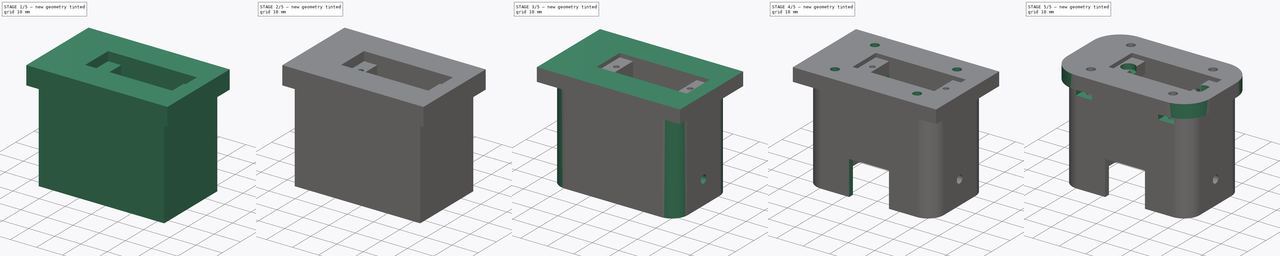
[diagram: build sequence overview — one tinted view per stage of 5, left to right]
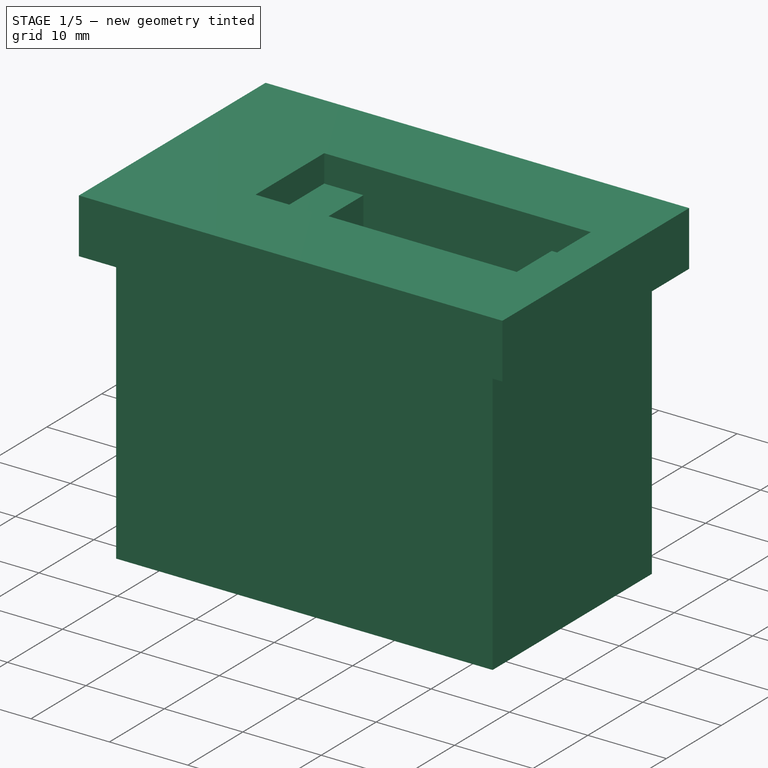
[diagram: stage 1 of 5 — iso view after this stage's code; geometry added in this stage tinted green]
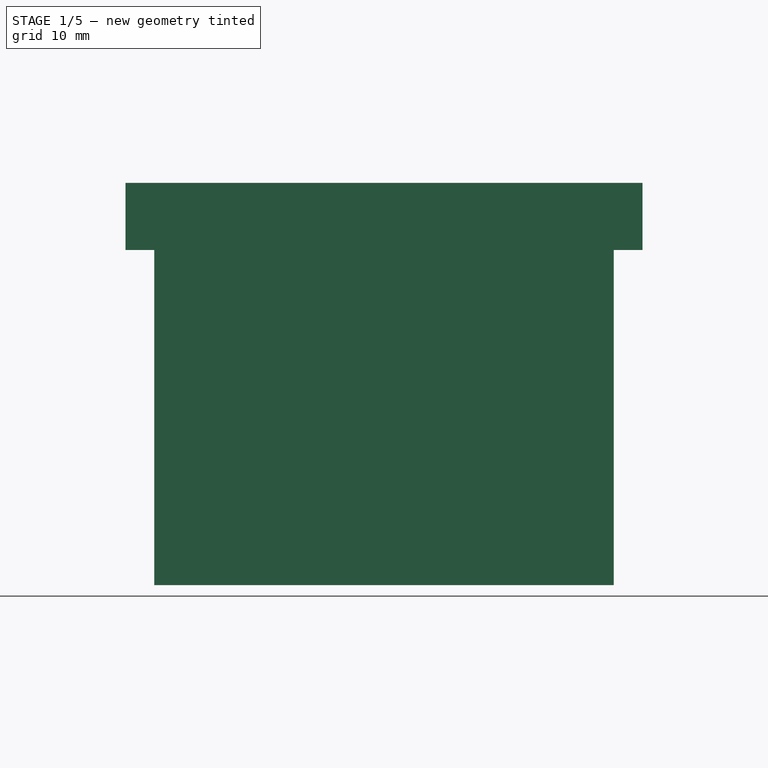
[diagram: stage 1 of 5 — front view after this stage's code; geometry added in this stage tinted green]
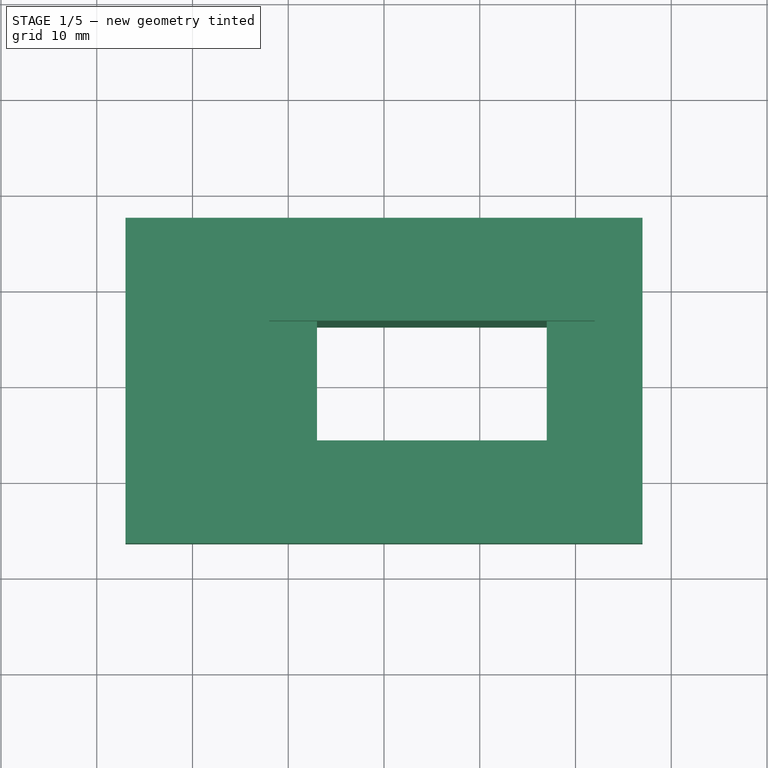
[diagram: stage 1 of 5 — top view after this stage's code; geometry added in this stage tinted green]
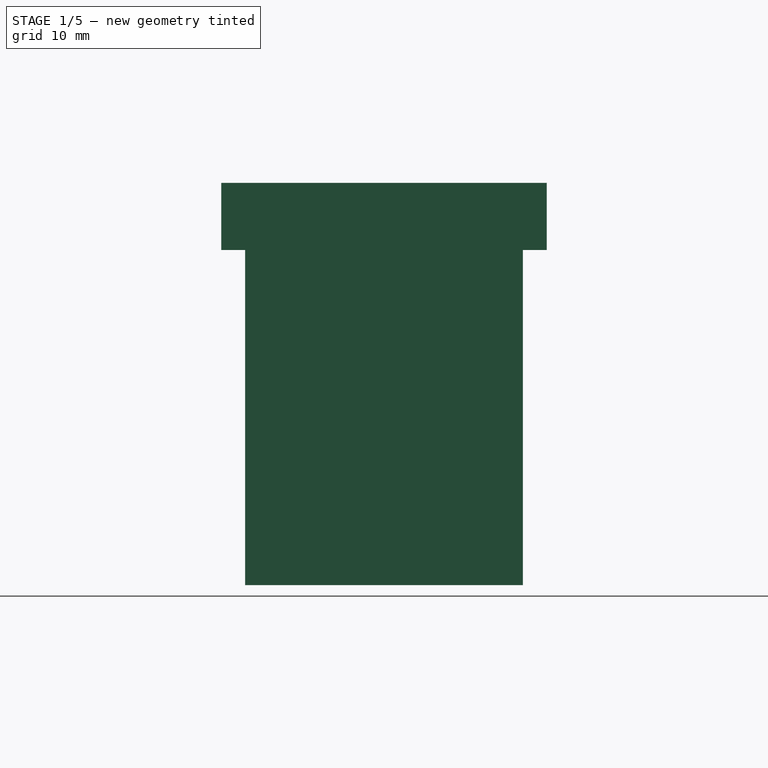
[diagram: stage 1 of 5 — right view after this stage's code; geometry added in this stage tinted green]
FCSTD DOCUMENT  (FreeCAD 0.21R33668 +26 (Git))
Label: Gripper_3_1
License: All rights reserved
LicenseURL: https://en.wikipedia.org/wiki/All_rights_reserved
objects: Sketcher::SketchObject×13, PartDesign::Pocket×11, PartDesign::Pad×2, PartDesign::Fillet×2, PartDesign::Body×1
note: 44 computed .brp shape members not serialized (recipe doc carries the construction recipe); baked Part::Feature solids carry a one-line shape summary decoded from their .brp

FEATURE [Sketcher::SketchObject] Sketch
  FullyConstrained = true
  MapMode = 5
  Support = -> [XY_Plane]
  sketch-geometry (9):
    g0: LineSegment StartX=-27 StartY=-17 StartZ=0 EndX=-27 EndY=17 EndZ=0
    g1: LineSegment StartX=-27 StartY=17 StartZ=0 EndX=27 EndY=17 EndZ=0
    g2: LineSegment StartX=27 StartY=17 StartZ=0 EndX=27 EndY=-17 EndZ=0
    g3: LineSegment StartX=27 StartY=-17 StartZ=0 EndX=-27 EndY=-17 EndZ=0
    g4: GeomPoint X=0 Y=0 Z=0
    g5: LineSegment StartX=-7 StartY=6.25 StartZ=0 EndX=17 EndY=6.25 EndZ=0
    g6: LineSegment StartX=17 StartY=6.25 StartZ=0 EndX=17 EndY=-6.25 EndZ=0
    g7: LineSegment StartX=17 StartY=-6.25 StartZ=0 EndX=-7 EndY=-6.25 EndZ=0
    g8: LineSegment StartX=-7 StartY=-6.25 StartZ=0 EndX=-7 EndY=6.25 EndZ=0
  constraints (24):
    c: Coincident(g0,g1)
    c: Coincident(g1,g2)
    c: Coincident(g2,g3)
    c: Coincident(g3,g0)
    c: Horizontal(g1)
    c: Horizontal(g3)
    c: Vertical(g0)
    c: Vertical(g2)
    c: Symmetric(g1,g0,g4)
    c: Coincident(g4,g-1)
    c: DistanceX(g1,g1) = 54
    c: DistanceY(g2,g2) = 34
    c: Coincident(g5,g6)
    c: Coincident(g6,g7)
    c: Coincident(g7,g8)
    c: Coincident(g8,g5)
    c: Horizontal(g5)
    c: Horizontal(g7)
    c: Vertical(g6)
    c: Vertical(g8)
    c: DistanceY(g8,g8) = 12.5
    c: DistanceX(g5,g5) = 24
    c: DistanceX(g0,g5) = 20
    c: DistanceY(g2,g6) = 10.75
FEATURE [PartDesign::Pad] Pad
  Direction = (0,0,1)
  Length = 7
  Length2 = 10
  Profile = -> Sketch
  ReferenceAxis = -> Sketch [N_Axis]
  Type = 0
FEATURE [Sketcher::SketchObject] Sketch001
  ExternalGeometry = -> [Pad]
  FullyConstrained = true
  MapMode = 5
  Placement = pos=(0,0,7) rot=(0,0,1;0rad)
  Support = -> [Pad]
  sketch-geometry (8):
    g0: LineSegment StartX=-7 StartY=6.25 StartZ=0 EndX=-12 EndY=6.25 EndZ=0
    g1: LineSegment StartX=-12 StartY=6.25 StartZ=0 EndX=-12 EndY=-6.25 EndZ=0
    g2: LineSegment StartX=-12 StartY=-6.25 StartZ=0 EndX=-7 EndY=-6.25 EndZ=0
    g3: LineSegment StartX=-7 StartY=-6.25 StartZ=0 EndX=-7 EndY=6.25 EndZ=0
    g4: LineSegment StartX=17 StartY=6.25 StartZ=0 EndX=22 EndY=6.25 EndZ=0
    g5: LineSegment StartX=22 StartY=6.25 StartZ=0 EndX=22 EndY=-6.25 EndZ=0
    g6: LineSegment StartX=22 StartY=-6.25 StartZ=0 EndX=17 EndY=-6.25 EndZ=0
    g7: LineSegment StartX=17 StartY=-6.25 StartZ=0 EndX=17 EndY=6.25 EndZ=0
  constraints (22):
    c: Coincident(g0,g1)
    c: Coincident(g1,g2)
    c: Coincident(g2,g3)
    c: Coincident(g3,g0)
    c: Horizontal(g0)
    c: Horizontal(g2)
    c: Vertical(g1)
    c: Vertical(g3)
    c: Coincident(g0,g-4)
    c: Coincident(g4,g5)
    c: Coincident(g5,g6)
    c: Coincident(g6,g7)
    c: Coincident(g7,g4)
    c: Horizontal(g4)
    c: Horizontal(g6)
    c: Vertical(g5)
    c: Vertical(g7)
    c: Coincident(g4,g-3)
    c: DistanceX(g4,g4) = 5
    c: DistanceX(g0,g0) = 5
    c: Horizontal(g1,g6)
    c: Horizontal(g5,g-3)
FEATURE [PartDesign::Pocket] Pocket
  BaseFeature = -> Pad
  Direction = (0,0,-1)
  Length = 3.5
  Length2 = 5
  Profile = -> Sketch001
  ReferenceAxis = -> Sketch001 [N_Axis]
  Type = 0
FEATURE [Sketcher::SketchObject] Sketch002
  ExternalGeometry = -> [Pocket]
  FullyConstrained = true
  MapMode = 5
  Placement = pos=(0,0,0) rot=(1,0,0;3.14159rad)
  Support = -> [Pocket]
  sketch-geometry (8):
    g0: LineSegment StartX=-24 StartY=14.5 StartZ=0 EndX=24 EndY=14.5 EndZ=0
    g1: LineSegment StartX=24 StartY=14.5 StartZ=0 EndX=24 EndY=-14.5 EndZ=0
    g2: LineSegment StartX=24 StartY=-14.5 StartZ=0 EndX=-24 EndY=-14.5 EndZ=0
    g3: LineSegment StartX=-24 StartY=-14.5 StartZ=0 EndX=-24 EndY=14.5 EndZ=0
    g4: LineSegment StartX=-7 StartY=6.25 StartZ=0 EndX=17 EndY=6.25 EndZ=0
    g5: LineSegment StartX=17 StartY=6.25 StartZ=0 EndX=17 EndY=-6.25 EndZ=0
    g6: LineSegment StartX=17 StartY=-6.25 StartZ=0 EndX=-7 EndY=-6.25 EndZ=0
    g7: LineSegment StartX=-7 StartY=-6.25 StartZ=0 EndX=-7 EndY=6.25 EndZ=0
  constraints (22):
    c: Coincident(g0,g1)
    c: Coincident(g1,g2)
    c: Coincident(g2,g3)
    c: Coincident(g3,g0)
    c: Horizontal(g0)
    c: Horizontal(g2)
    c: Vertical(g1)
    c: Vertical(g3)
    c: DistanceX(g0,g0) = 48
    c: DistanceY(g3,g3) = 29
    c: DistanceX(g-3,g0) = 3
    c: DistanceY(g0,g-3) = 2.5
    c: Coincident(g4,g5)
    c: Coincident(g5,g6)
    c: Coincident(g6,g7)
    c: Coincident(g7,g4)
    c: Horizontal(g4)
    c: Horizontal(g6)
    c: Vertical(g5)
    c: Vertical(g7)
    c: Coincident(g4,g-5)
    c: Coincident(g5,g-6)
FEATURE [PartDesign::Pad] Pad001
  BaseFeature = -> Pocket
  Direction = (0,0,-1)
  Length = 35
  Length2 = 10
  Profile = -> Sketch002
  ReferenceAxis = -> Sketch002 [N_Axis]
  Type = 0
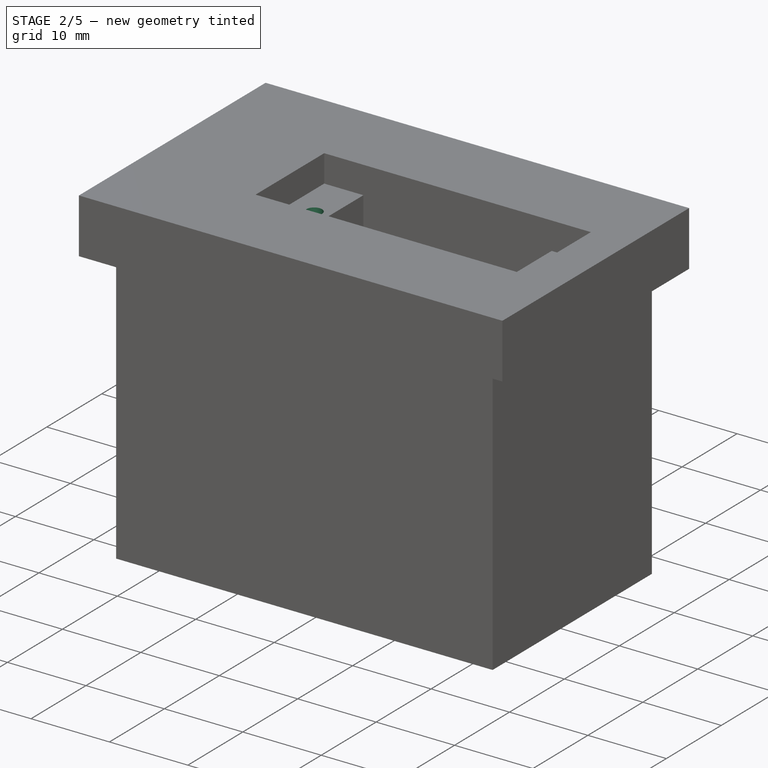
[diagram: stage 2 of 5 — iso view after this stage's code; geometry added in this stage tinted green]
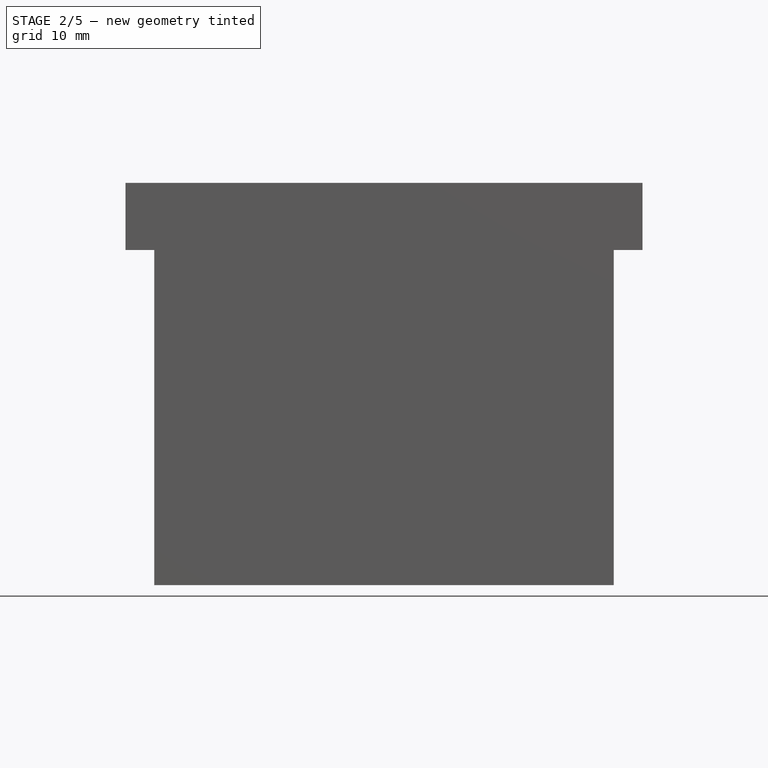
[diagram: stage 2 of 5 — front view after this stage's code; geometry added in this stage tinted green]
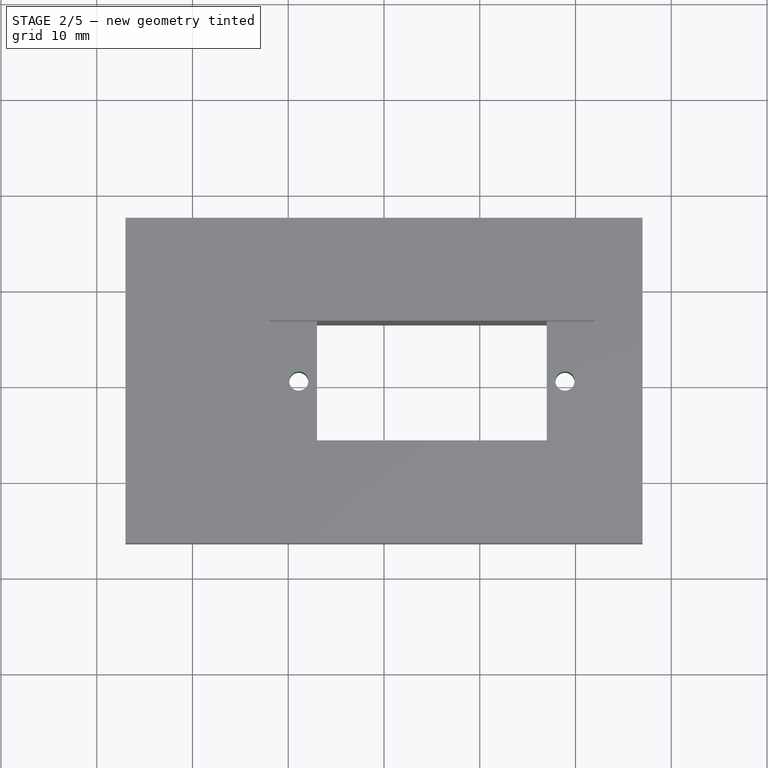
[diagram: stage 2 of 5 — top view after this stage's code; geometry added in this stage tinted green]
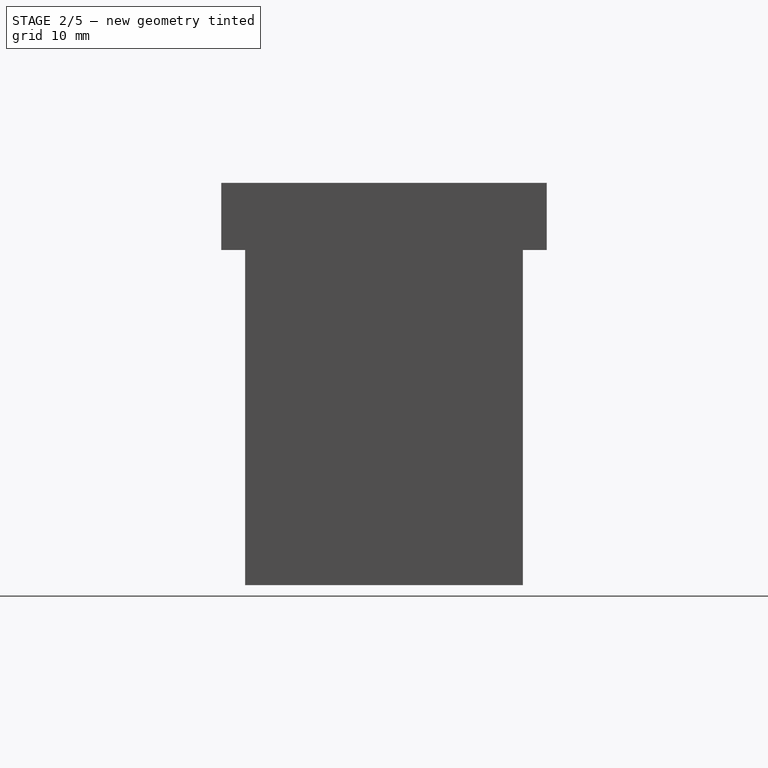
[diagram: stage 2 of 5 — right view after this stage's code; geometry added in this stage tinted green]
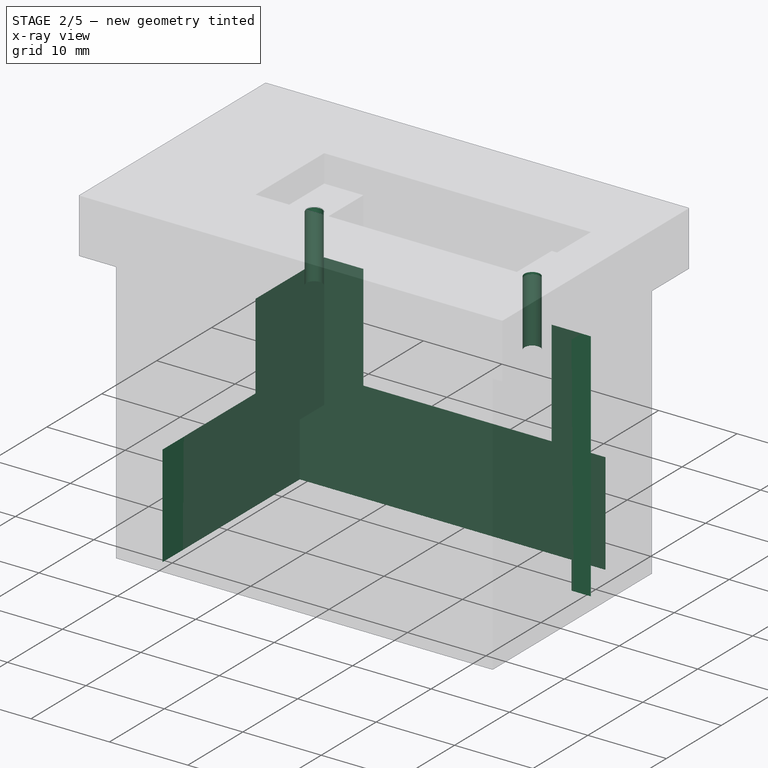
[diagram: stage 2 of 5 — x-ray composite at the iso view; earlier geometry ghosted, this stage's added geometry solid]
FEATURE [Sketcher::SketchObject] Sketch003
  ExternalGeometry = -> [Pad001]
  FullyConstrained = true
  MapMode = 5
  Placement = pos=(0,0,3.5) rot=(0,0,1;0rad)
  Support = -> [Pad001]
  sketch-geometry (2):
    g0: Circle CenterX=-8.9 CenterY=0 CenterZ=0 NormalX=0 NormalY=0 NormalZ=1 AngleXU=0 Radius=1
    g1: Circle CenterX=18.9 CenterY=0 CenterZ=0 NormalX=0 NormalY=0 NormalZ=1 AngleXU=0 Radius=1
  constraints (6):
    c: PointOnObject(g0,g-1)
    c: PointOnObject(g1,g-1)
    c: Diameter(g1) = 2
    c: Diameter(g0) = 2
    c: DistanceX(g0,g-3) = 1.9
    c: DistanceX(g-4,g1) = 1.9
FEATURE [PartDesign::Pocket] Pocket001
  BaseFeature = -> Pad001
  Direction = (0,0,-1)
  Length = 5
  Length2 = 5
  Profile = -> Sketch003
  ReferenceAxis = -> Sketch003 [N_Axis]
  Type = 1
FEATURE [Sketcher::SketchObject] Sketch004
  ExternalGeometry = -> [Pocket001]
  FullyConstrained = true
  MapMode = 5
  Placement = pos=(0,0,-35) rot=(1,0,0;3.14159rad)
  Support = -> [Pocket001]
  sketch-geometry (4):
    g0: LineSegment StartX=22 StartY=6.25 StartZ=0 EndX=-12 EndY=6.25 EndZ=0
    g1: LineSegment StartX=-12 StartY=6.25 StartZ=0 EndX=-12 EndY=-6.25 EndZ=0
    g2: LineSegment StartX=-12 StartY=-6.25 StartZ=0 EndX=22 EndY=-6.25 EndZ=0
    g3: LineSegment StartX=22 StartY=-6.25 StartZ=0 EndX=22 EndY=6.25 EndZ=0
  constraints (10):
    c: Coincident(g0,g1)
    c: Coincident(g1,g2)
    c: Coincident(g2,g3)
    c: Coincident(g3,g0)
    c: Horizontal(g0)
    c: Horizontal(g2)
    c: Vertical(g1)
    c: Vertical(g3)
    c: Coincident(g0,g-4)
    c: Coincident(g1,g-3)
FEATURE [PartDesign::Pocket] Pocket002
  BaseFeature = -> Pocket001
  Direction = (0,0,1)
  Length = 30
  Length2 = 5
  Profile = -> Sketch004
  ReferenceAxis = -> Sketch004 [N_Axis]
  Type = 0
FEATURE [Sketcher::SketchObject] Sketch005
  ExternalGeometry = -> [Pocket002]
  FullyConstrained = true
  MapMode = 5
  Placement = pos=(0,0,-35) rot=(1,0,0;3.14159rad)
  Support = -> [Pocket002]
  sketch-geometry (4):
    g0: LineSegment StartX=-19.5 StartY=12.5 StartZ=0 EndX=19.5 EndY=12.5 EndZ=0
    g1: LineSegment StartX=19.5 StartY=12.5 StartZ=0 EndX=19.5 EndY=-12.5 EndZ=0
    g2: LineSegment StartX=19.5 StartY=-12.5 StartZ=0 EndX=-19.5 EndY=-12.5 EndZ=0
    g3: LineSegment StartX=-19.5 StartY=-12.5 StartZ=0 EndX=-19.5 EndY=12.5 EndZ=0
  constraints (12):
    c: Coincident(g0,g1)
    c: Coincident(g1,g2)
    c: Coincident(g2,g3)
    c: Coincident(g3,g0)
    c: Horizontal(g0)
    c: Horizontal(g2)
    c: Vertical(g1)
    c: Vertical(g3)
    c: DistanceX(g-3,g0) = 4.5
    c: DistanceX(g0,g-4) = 4.5
    c: DistanceY(g0,g-4) = 2
    c: DistanceY(g-4,g1) = 2
FEATURE [PartDesign::Pocket] Pocket003
  BaseFeature = -> Pocket002
  Direction = (0,0,1)
  Length = 13
  Length2 = 5
  Profile = -> Sketch005
  ReferenceAxis = -> Sketch005 [N_Axis]
  Type = 0
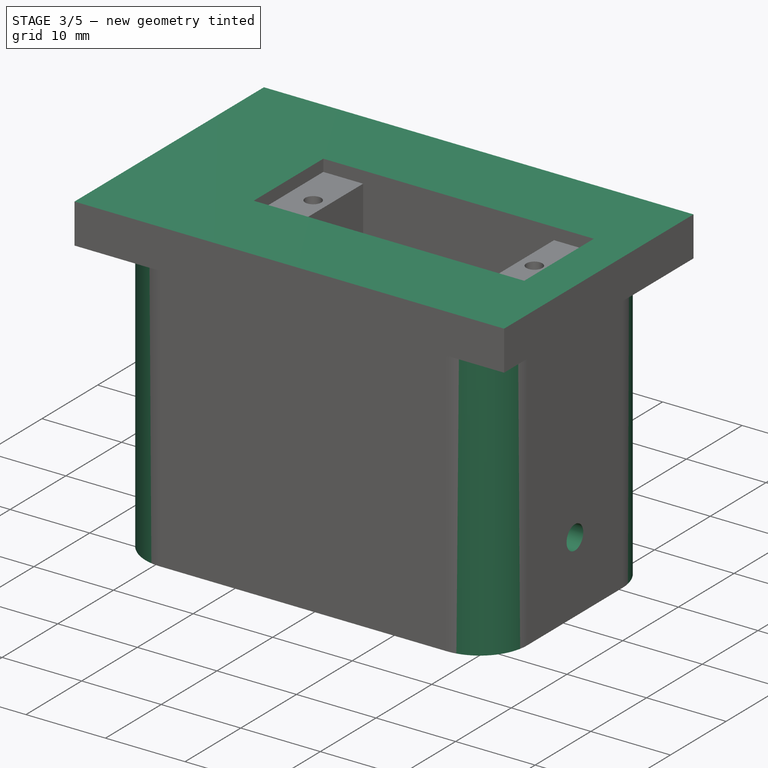
[diagram: stage 3 of 5 — iso view after this stage's code; geometry added in this stage tinted green]
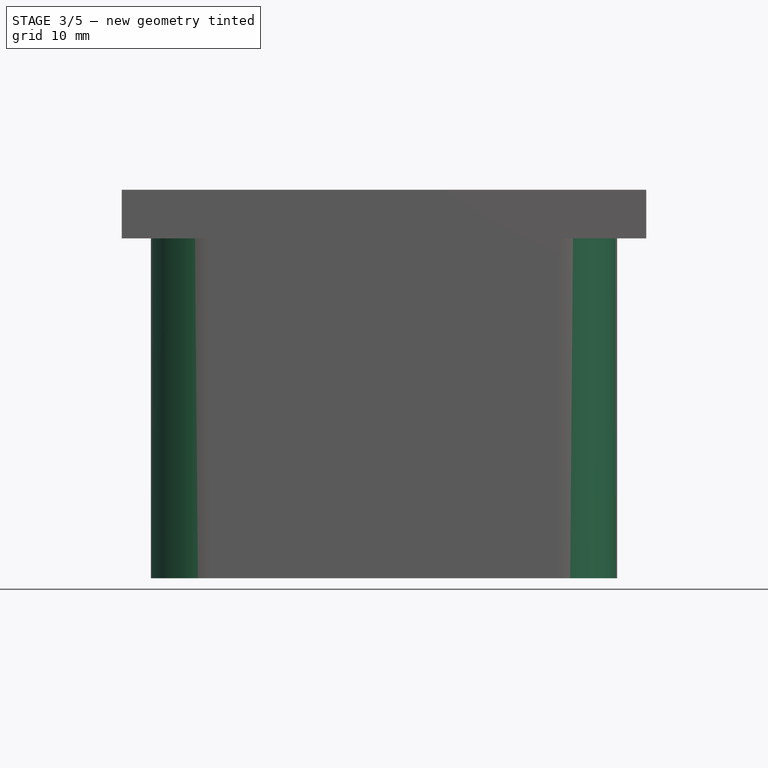
[diagram: stage 3 of 5 — front view after this stage's code; geometry added in this stage tinted green]
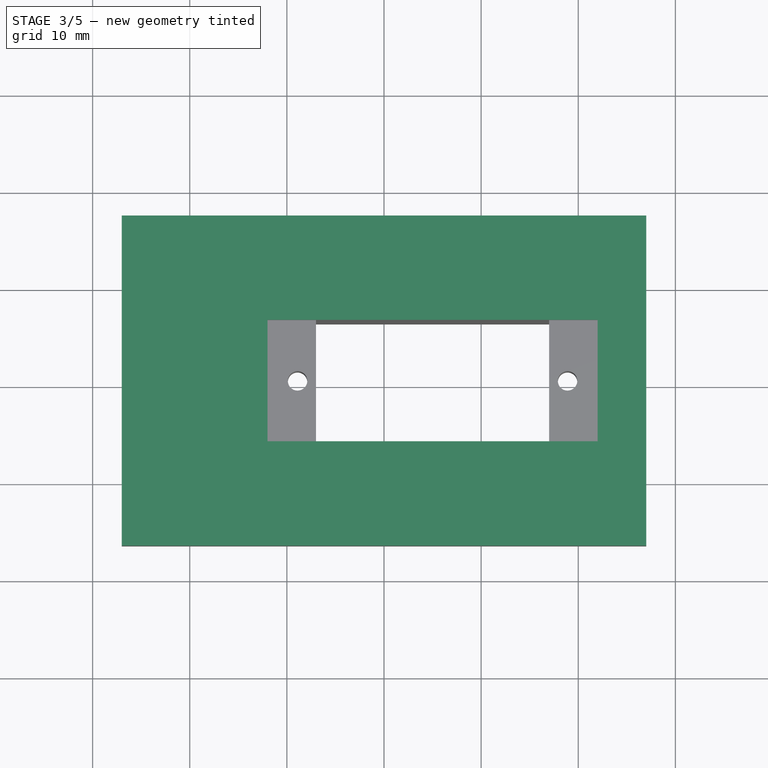
[diagram: stage 3 of 5 — top view after this stage's code; geometry added in this stage tinted green]
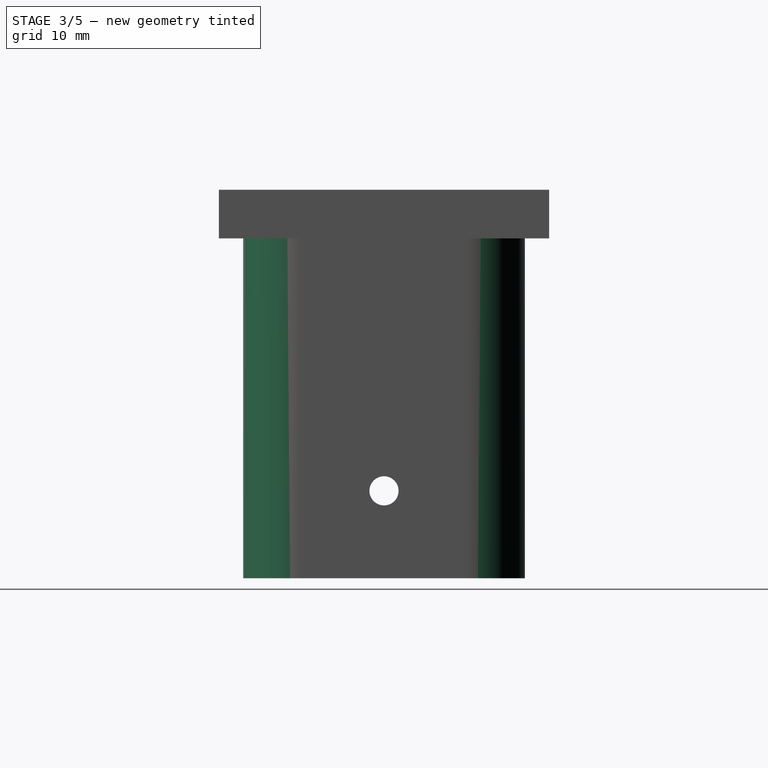
[diagram: stage 3 of 5 — right view after this stage's code; geometry added in this stage tinted green]
FEATURE [PartDesign::Fillet] Fillet
  Base = -> Pocket003 [Edge88,Edge90,Edge84,Edge86,Edge25,Edge30,Edge26,Edge28]
  BaseFeature = -> Pocket003
  Radius = 6
  SupportTransform = false
  UseAllEdges = false
FEATURE [Sketcher::SketchObject] Sketch007
  ExternalGeometry = -> [Fillet]
  FullyConstrained = true
  MapMode = 5
  Placement = pos=(-19.5,0,0) rot=(0.57735,0.57735,0.57735;2.0944rad)
  Support = -> [Fillet]
  sketch-geometry (1):
    g0: Circle CenterX=0 CenterY=-26 CenterZ=0 NormalX=0 NormalY=0 NormalZ=1 AngleXU=0 Radius=1.5
  constraints (3):
    c: PointOnObject(g0,g-2)
    c: Diameter(g0) = 3
    c: DistanceY(g0,g-3) = 4
FEATURE [PartDesign::Pocket] Pocket004
  BaseFeature = -> Fillet
  Direction = (-1,0,0)
  Length = 100
  Length2 = 100
  Profile = -> Sketch007
  ReferenceAxis = -> Sketch007 [N_Axis]
  Type = 4
FEATURE [Sketcher::SketchObject] Sketch008
  FullyConstrained = false
  MapMode = 5
  Placement = pos=(0,0,7) rot=(0,0,1;0rad)
  Support = -> [Pocket004]
  sketch-geometry (4):
    g0: LineSegment StartX=-36.1882 StartY=26.1459 StartZ=0 EndX=42.9128 EndY=26.1459 EndZ=0
    g1: LineSegment StartX=42.9128 StartY=26.1459 StartZ=0 EndX=42.9128 EndY=-25.2136 EndZ=0
    g2: LineSegment StartX=42.9128 StartY=-25.2136 StartZ=0 EndX=-36.1882 EndY=-25.2136 EndZ=0
    g3: LineSegment StartX=-36.1882 StartY=-25.2136 StartZ=0 EndX=-36.1882 EndY=26.1459 EndZ=0
  constraints (8):
    c: Coincident(g0,g1)
    c: Coincident(g1,g2)
    c: Coincident(g2,g3)
    c: Coincident(g3,g0)
    c: Horizontal(g0)
    c: Horizontal(g2)
    c: Vertical(g1)
    c: Vertical(g3)
FEATURE [PartDesign::Pocket] Pocket005
  BaseFeature = -> Pocket004
  Direction = (0,0,-1)
  Length = 2
  Length2 = 5
  Profile = -> Sketch008
  ReferenceAxis = -> Sketch008 [N_Axis]
  Type = 0
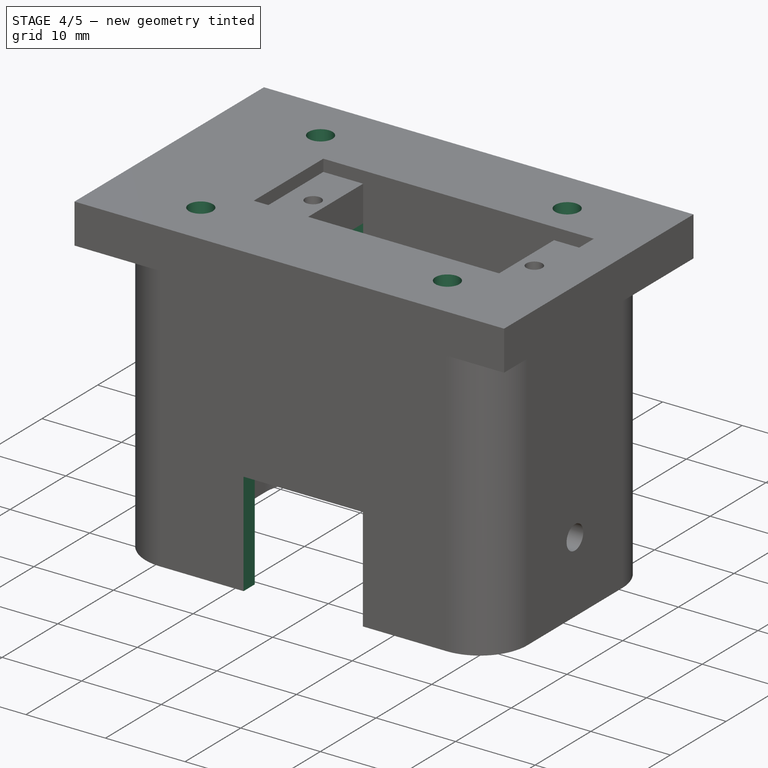
[diagram: stage 4 of 5 — iso view after this stage's code; geometry added in this stage tinted green]
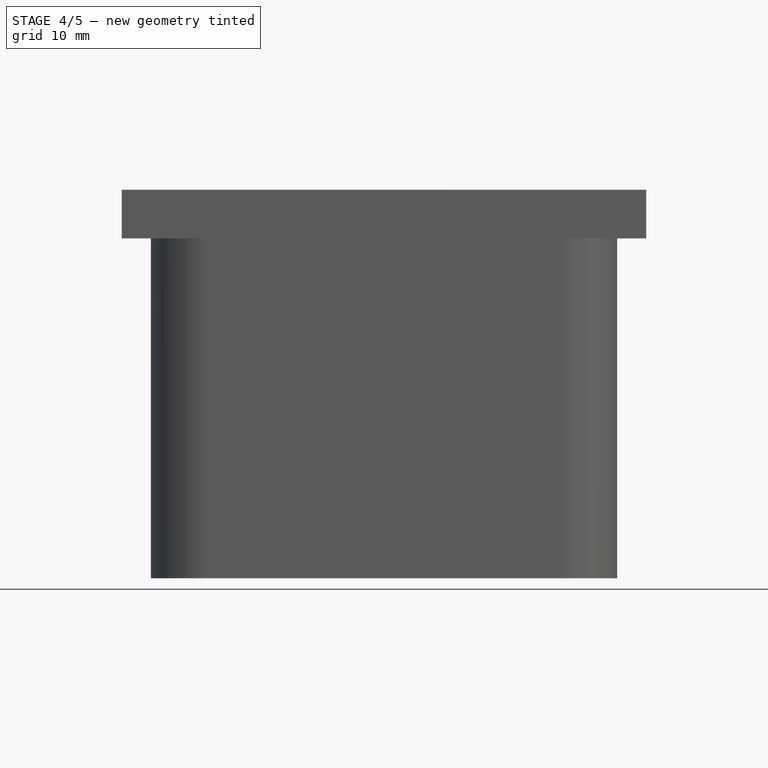
[diagram: stage 4 of 5 — front view after this stage's code; geometry added in this stage tinted green]
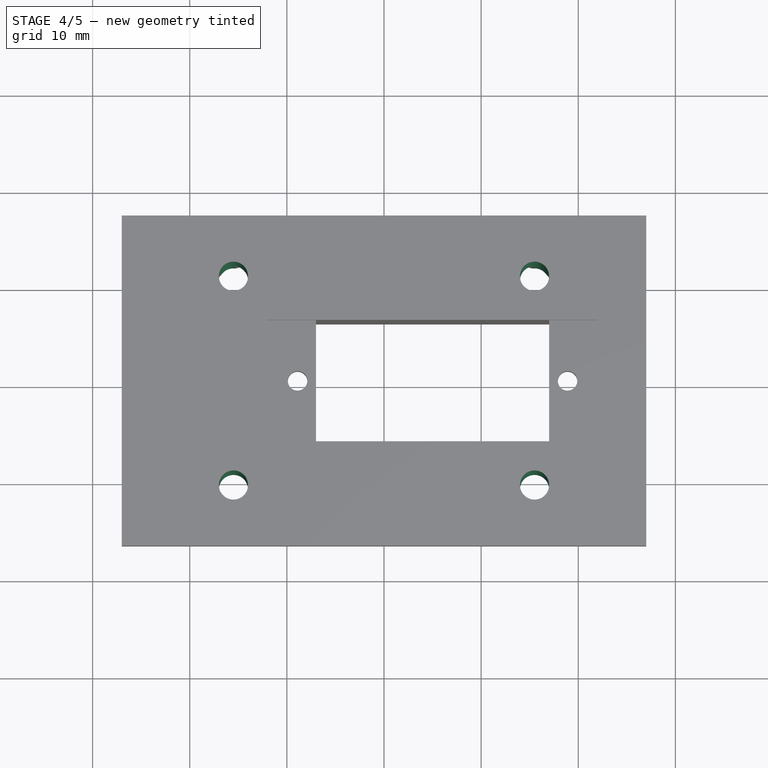
[diagram: stage 4 of 5 — top view after this stage's code; geometry added in this stage tinted green]
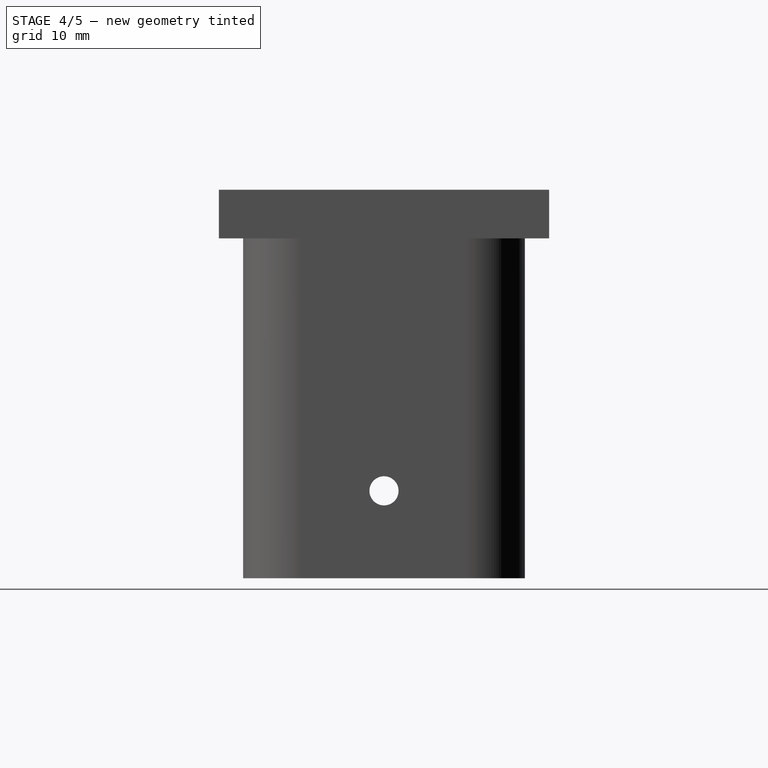
[diagram: stage 4 of 5 — right view after this stage's code; geometry added in this stage tinted green]
FEATURE [Sketcher::SketchObject] Sketch009
  ExternalGeometry = -> [Pocket005]
  FullyConstrained = true
  MapMode = 5
  Placement = pos=(0,0,-5) rot=(1,0,0;3.14159rad)
  Support = -> [Pocket005]
  sketch-geometry (4):
    g0: LineSegment StartX=22 StartY=6.25 StartZ=0 EndX=-12 EndY=6.25 EndZ=0
    g1: LineSegment StartX=-12 StartY=6.25 StartZ=0 EndX=-12 EndY=-6.25 EndZ=0
    g2: LineSegment StartX=-12 StartY=-6.25 StartZ=0 EndX=22 EndY=-6.25 EndZ=0
    g3: LineSegment StartX=22 StartY=-6.25 StartZ=0 EndX=22 EndY=6.25 EndZ=0
  constraints (10):
    c: Coincident(g0,g1)
    c: Coincident(g1,g2)
    c: Coincident(g2,g3)
    c: Coincident(g3,g0)
    c: Horizontal(g0)
    c: Horizontal(g2)
    c: Vertical(g1)
    c: Vertical(g3)
    c: Coincident(g0,g-4)
    c: Coincident(g1,g-3)
FEATURE [PartDesign::Pocket] Pocket006
  BaseFeature = -> Pocket005
  Direction = (0,0,1)
  Length = 4
  Length2 = 5
  Profile = -> Sketch009
  ReferenceAxis = -> Sketch009 [N_Axis]
  Type = 0
FEATURE [Sketcher::SketchObject] Sketch010
  ExternalGeometry = -> [Pocket006]
  FullyConstrained = false
  MapMode = 5
  Placement = pos=(0,-12.5,0) rot=(0,0.707107,0.707107;3.14159rad)
  Support = -> [Pocket006]
  sketch-geometry (4):
    g0: LineSegment StartX=-7.5 StartY=-22 StartZ=0 EndX=7.5 EndY=-22 EndZ=0
    g1: LineSegment StartX=7.5 StartY=-22 StartZ=0 EndX=7.5 EndY=-41.3731 EndZ=0
    g2: LineSegment StartX=7.5 StartY=-41.3731 StartZ=0 EndX=-7.5 EndY=-41.3731 EndZ=0
    g3: LineSegment StartX=-7.5 StartY=-41.3731 StartZ=0 EndX=-7.5 EndY=-22 EndZ=0
  constraints (12):
    c: Coincident(g0,g1)
    c: Coincident(g1,g2)
    c: Coincident(g2,g3)
    c: Coincident(g3,g0)
    c: Horizontal(g0)
    c: Horizontal(g2)
    c: Vertical(g1)
    c: Vertical(g3)
    c: PointOnObject(g0,g-3)
    c: DistanceX(g2,g2) = 15
    c: DistanceX(g-4,g-5) = 36
    c: DistanceX(g1,g-5) = 10.5
FEATURE [PartDesign::Pocket] Pocket007
  BaseFeature = -> Pocket006
  Direction = (0,-1,2e-16)
  Length = 5
  Length2 = 5
  Profile = -> Sketch010
  ReferenceAxis = -> Sketch010 [N_Axis]
  Type = 0
FEATURE [Sketcher::SketchObject] Sketch011
  ExternalGeometry = -> [Pocket007]
  FullyConstrained = true
  MapMode = 5
  Placement = pos=(0,0,5) rot=(0,0,1;0rad)
  Support = -> [Pocket007]
  sketch-geometry (4):
    g0: Circle CenterX=-15.5 CenterY=10.75 CenterZ=0 NormalX=0 NormalY=0 NormalZ=1 AngleXU=0 Radius=1.5
    g1: Circle CenterX=15.5 CenterY=10.75 CenterZ=0 NormalX=0 NormalY=0 NormalZ=1 AngleXU=0 Radius=1.5
    g2: Circle CenterX=-15.5 CenterY=-10.75 CenterZ=0 NormalX=0 NormalY=0 NormalZ=1 AngleXU=0 Radius=1.5
    g3: Circle CenterX=15.5 CenterY=-10.75 CenterZ=0 NormalX=0 NormalY=0 NormalZ=1 AngleXU=0 Radius=1.5
  constraints (15):
    c: DistanceX(g-4,g-4) = 24
    c: DistanceX(g-1,g-4) = 17
    c: Vertical(g1,g3)
    c: Vertical(g2,g0)
    c: Horizontal(g0,g1)
    c: Horizontal(g2,g3)
    c: Equal(g1,g0)
    c: Equal(g0,g2)
    c: Equal(g2,g3)
    c: Diameter(g1) = 3
    c: DistanceY(g-1,g1) = 10.75
    c: DistanceY(g3,g-1) = 10.75
    c: DistanceX(g-4,g-1) = 7
    c: DistanceX(g0,g-5) = 3.5
    c: DistanceX(g1,g-6) = 6.5
FEATURE [PartDesign::Pocket] Pocket008
  BaseFeature = -> Pocket007
  Direction = (0,0,-1)
  Length = 5
  Length2 = 5
  Profile = -> Sketch011
  ReferenceAxis = -> Sketch011 [N_Axis]
  Type = 1
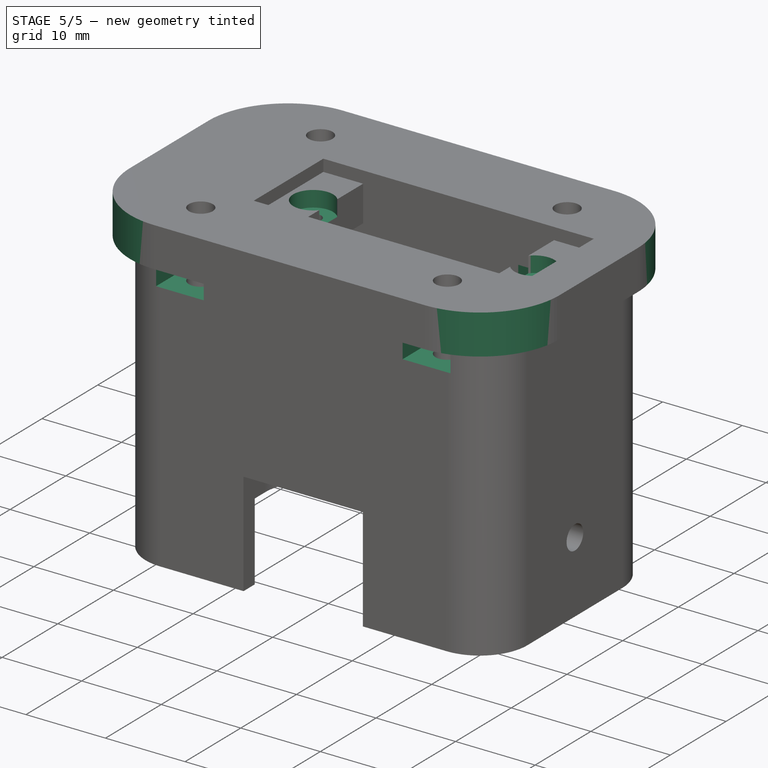
[diagram: stage 5 of 5 — iso view after this stage's code; geometry added in this stage tinted green]
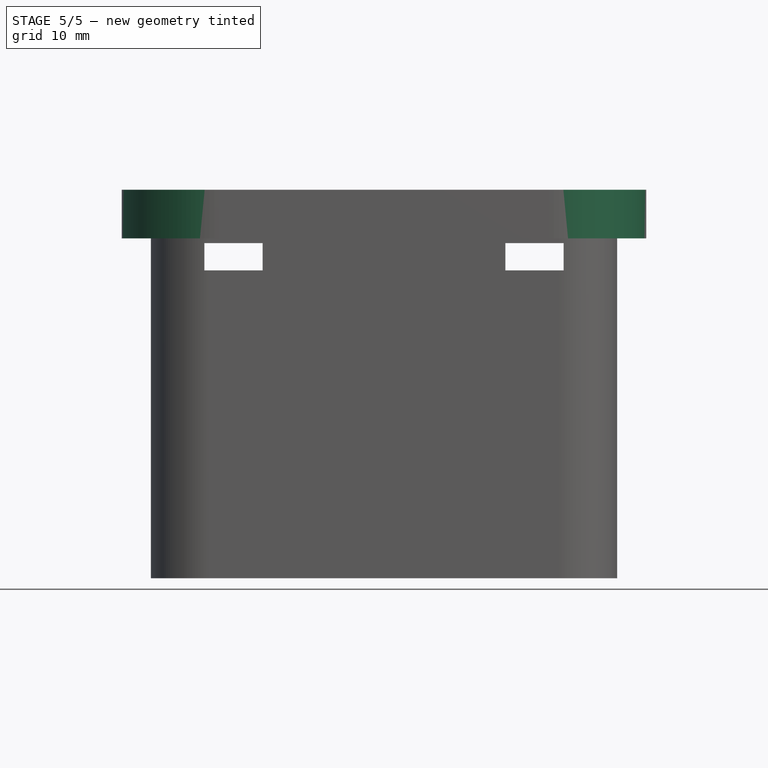
[diagram: stage 5 of 5 — front view after this stage's code; geometry added in this stage tinted green]
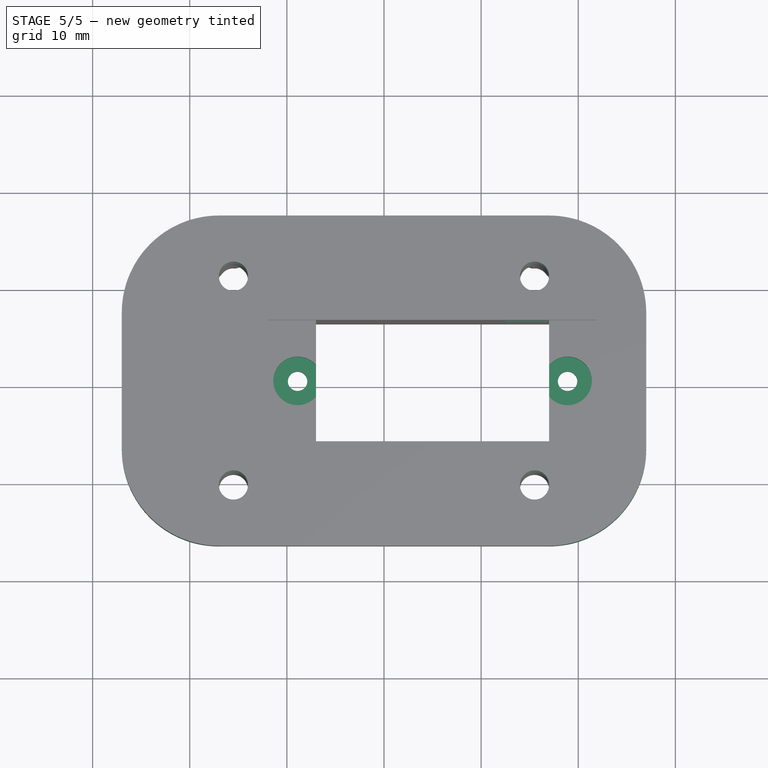
[diagram: stage 5 of 5 — top view after this stage's code; geometry added in this stage tinted green]
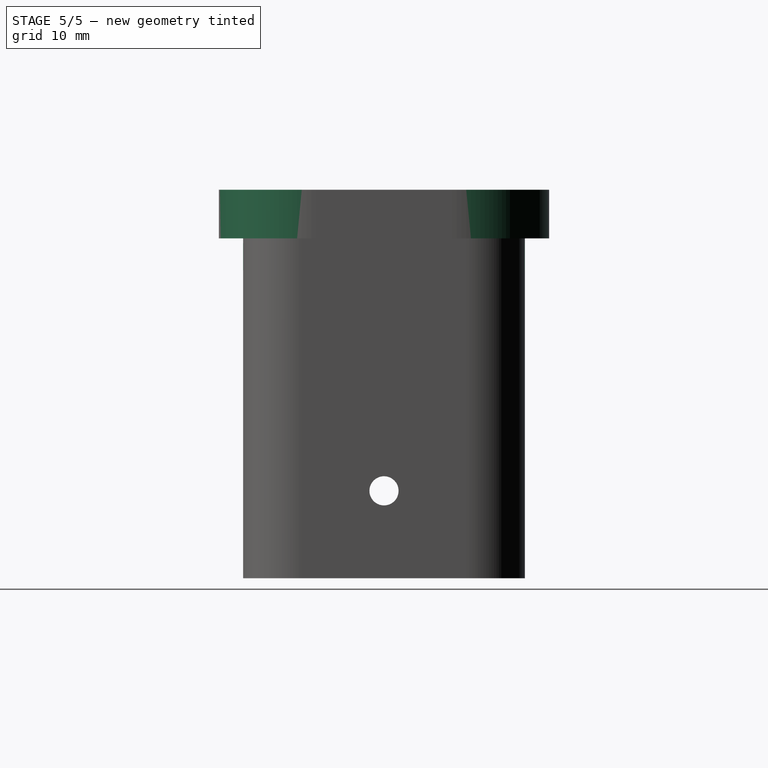
[diagram: stage 5 of 5 — right view after this stage's code; geometry added in this stage tinted green]
FEATURE [Sketcher::SketchObject] Sketch012
  ExternalGeometry = -> [Pocket008]
  FullyConstrained = true
  MapMode = 5
  Placement = pos=(0,-14.5,0) rot=(1,0,0;1.5708rad)
  Support = -> [Pocket008]
  sketch-geometry (8):
    g0: LineSegment StartX=-18.5 StartY=-0.5 StartZ=0 EndX=-12.5 EndY=-0.5 EndZ=0
    g1: LineSegment StartX=-12.5 StartY=-0.5 StartZ=0 EndX=-12.5 EndY=-3.3 EndZ=0
    g2: LineSegment StartX=-12.5 StartY=-3.3 StartZ=0 EndX=-18.5 EndY=-3.3 EndZ=0
    g3: LineSegment StartX=-18.5 StartY=-3.3 StartZ=0 EndX=-18.5 EndY=-0.5 EndZ=0
    g4: LineSegment StartX=12.5 StartY=-0.5 StartZ=0 EndX=18.5 EndY=-0.5 EndZ=0
    g5: LineSegment StartX=18.5 StartY=-0.5 StartZ=0 EndX=18.5 EndY=-3.3 EndZ=0
    g6: LineSegment StartX=18.5 StartY=-3.3 StartZ=0 EndX=12.5 EndY=-3.3 EndZ=0
    g7: LineSegment StartX=12.5 StartY=-3.3 StartZ=0 EndX=12.5 EndY=-0.5 EndZ=0
  constraints (24):
    c: Coincident(g0,g1)
    c: Coincident(g1,g2)
    c: Coincident(g2,g3)
    c: Coincident(g3,g0)
    c: Horizontal(g0)
    c: Horizontal(g2)
    c: Vertical(g1)
    c: Vertical(g3)
    c: Coincident(g4,g5)
    c: Coincident(g5,g6)
    c: Coincident(g6,g7)
    c: Coincident(g7,g4)
    c: Horizontal(g4)
    c: Horizontal(g6)
    c: Vertical(g5)
    c: Vertical(g7)
    c: DistanceX(g4,g4) = 6
    c: DistanceX(g0,g0) = 6
    c: DistanceY(g1,g1) = 2.8
    c: Horizontal(g0,g4)
    c: Horizontal(g6,g1)
    c: DistanceX(g4,g-4) = 1.5
    c: DistanceX(g-3,g0) = 1.5
    c: DistanceY(g4,g-4) = 5.5
FEATURE [PartDesign::Pocket] Pocket009
  BaseFeature = -> Pocket008
  Direction = (0,1,-2e-16)
  Length = 5
  Length2 = 5
  Profile = -> Sketch012
  ReferenceAxis = -> Sketch012 [N_Axis]
  Type = 1
FEATURE [PartDesign::Fillet] Fillet001
  Base = -> Pocket009 [Edge67,Edge68,Edge65,Edge63]
  BaseFeature = -> Pocket009
  Radius = 10
  SupportTransform = false
  UseAllEdges = false
FEATURE [Sketcher::SketchObject] Sketch013
  ExternalGeometry = -> [Fillet001]
  FullyConstrained = true
  MapMode = 5
  Placement = pos=(0,0,3.5) rot=(0,0,1;0rad)
  Support = -> [Fillet001]
  sketch-geometry (2):
    g0: Circle CenterX=-8.9 CenterY=0 CenterZ=0 NormalX=0 NormalY=0 NormalZ=1 AngleXU=0 Radius=2.5
    g1: Circle CenterX=18.9 CenterY=0 CenterZ=0 NormalX=0 NormalY=0 NormalZ=1 AngleXU=0 Radius=2.5
  constraints (4):
    c: Coincident(g0,g-3)
    c: Coincident(g1,g-4)
    c: Equal(g1,g0)
    c: Diameter(g1) = 5
FEATURE [PartDesign::Pocket] Pocket010
  BaseFeature = -> Fillet001
  Direction = (0,0,-1)
  Length = 2
  Length2 = 5
  Profile = -> Sketch013
  ReferenceAxis = -> Sketch013 [N_Axis]
  Type = 0
FEATURE [PartDesign::Body] Body
  Group = -> [Sketch,Pad,Sketch001,Pocket,Sketch002,Pad001,Sketch003,Pocket001,Sketch004,Pocket002,Sketch005,Pocket003,Fillet,Sketch007,Pocket004,Sketch008,Pocket005,Sketch009,Pocket006,Sketch010,Pocket007,Sketch011,Pocket008,Sketch012,Pocket009,Fillet001,Sketch013,Pocket010]
  Origin = -> Origin
  Tip = -> Pocket010
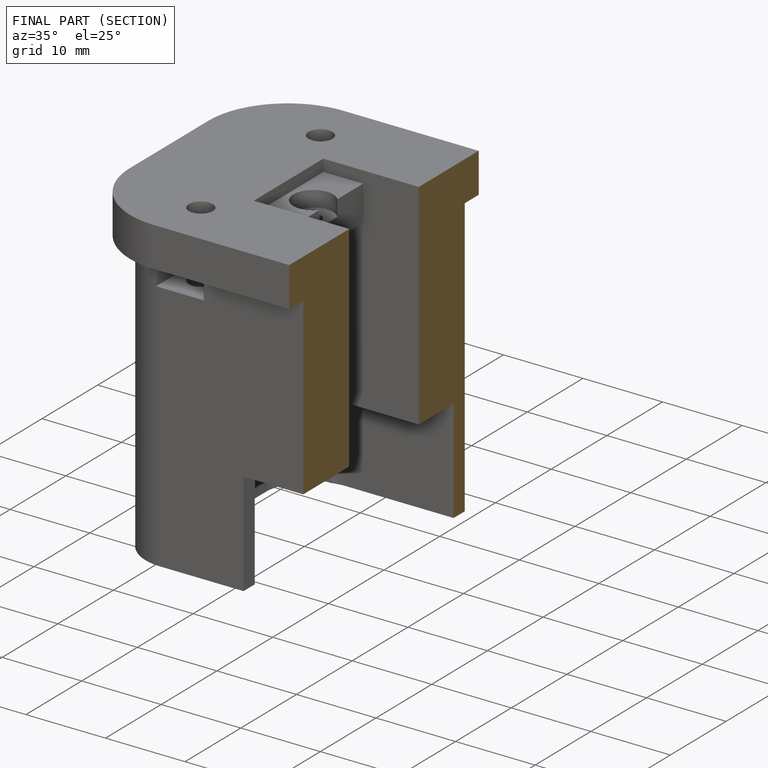
[diagram: finished part — half-section view (interior)]
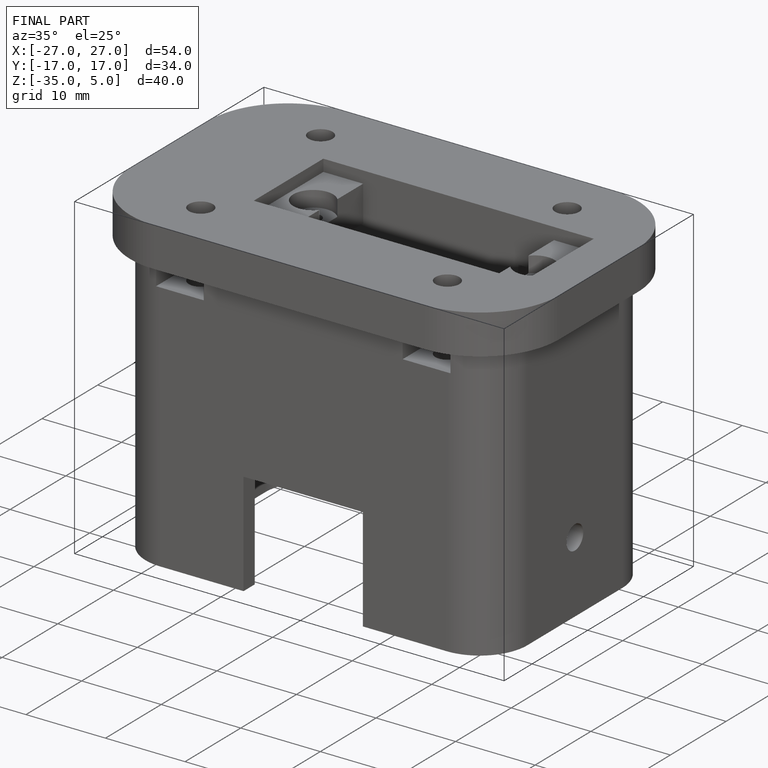
[diagram: finished part — iso view with bounding-box wireframe]
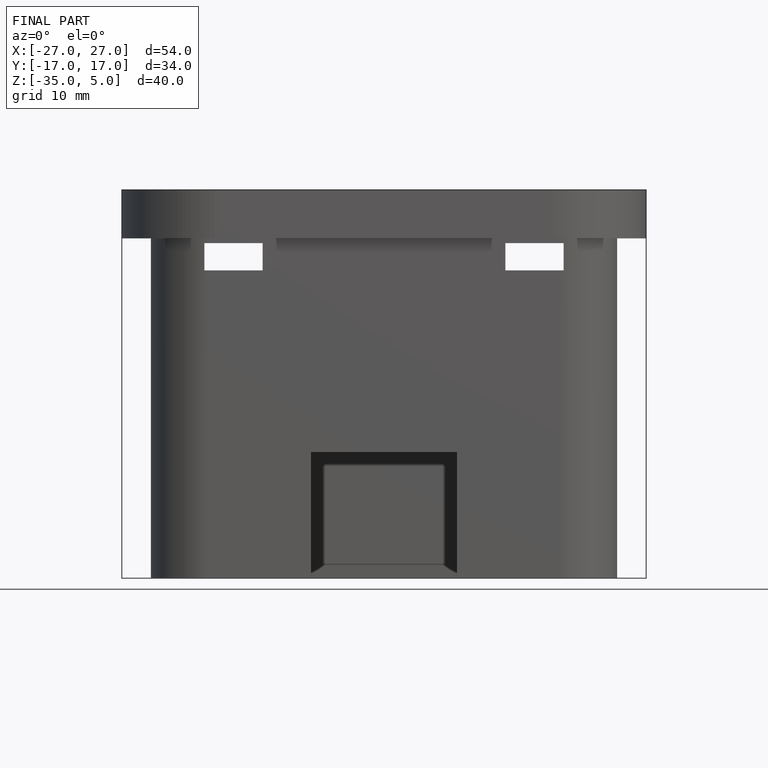
[diagram: finished part — front view with bounding-box wireframe]
